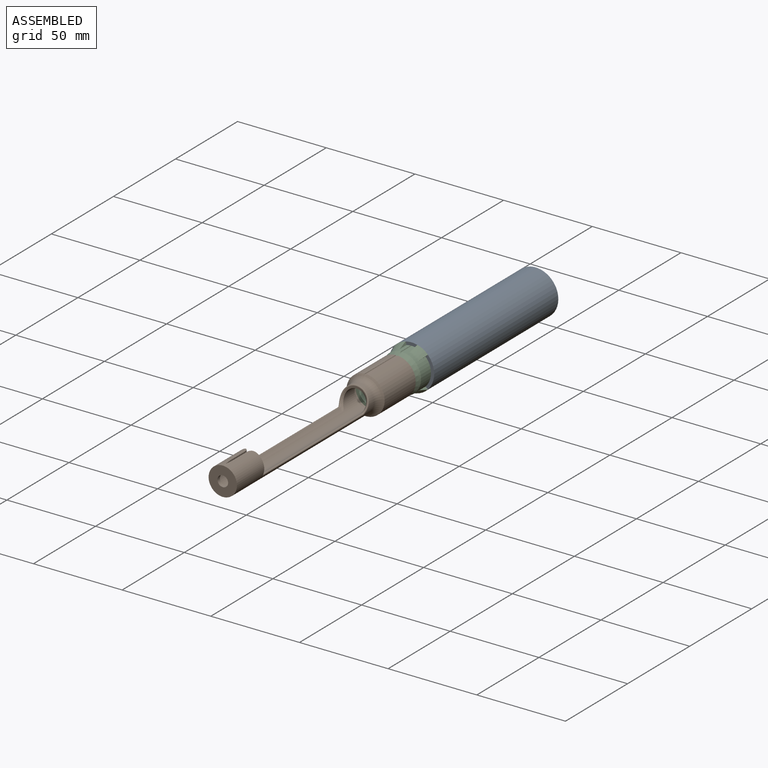
[diagram: assembled view]
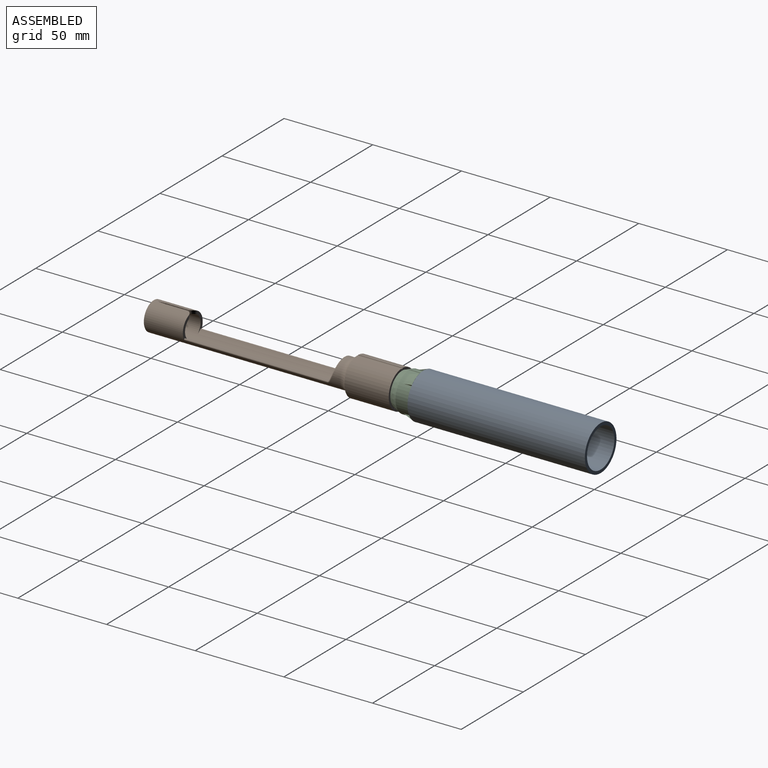
[diagram: assembled view, second angle]
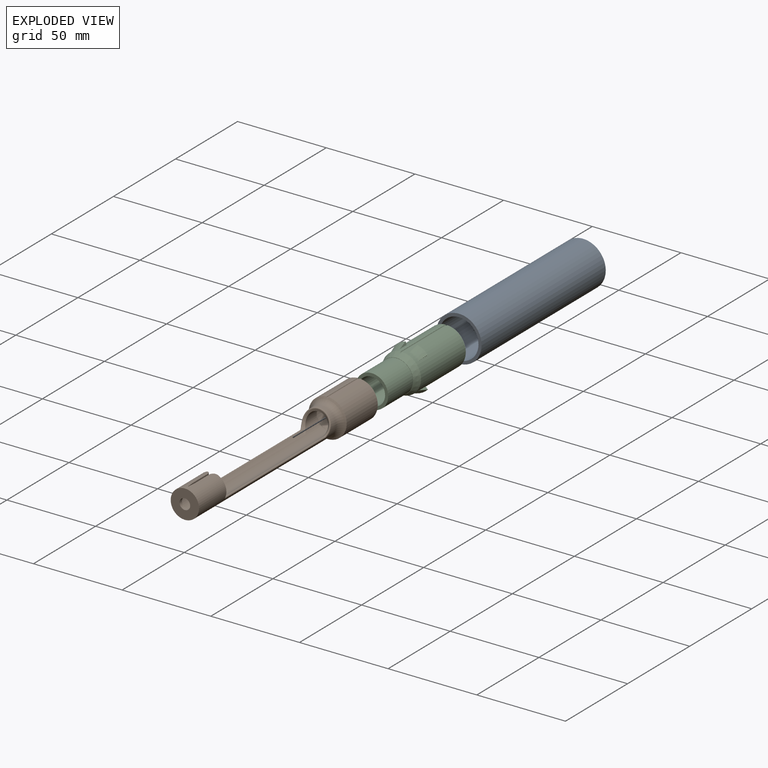
[diagram: exploded view]
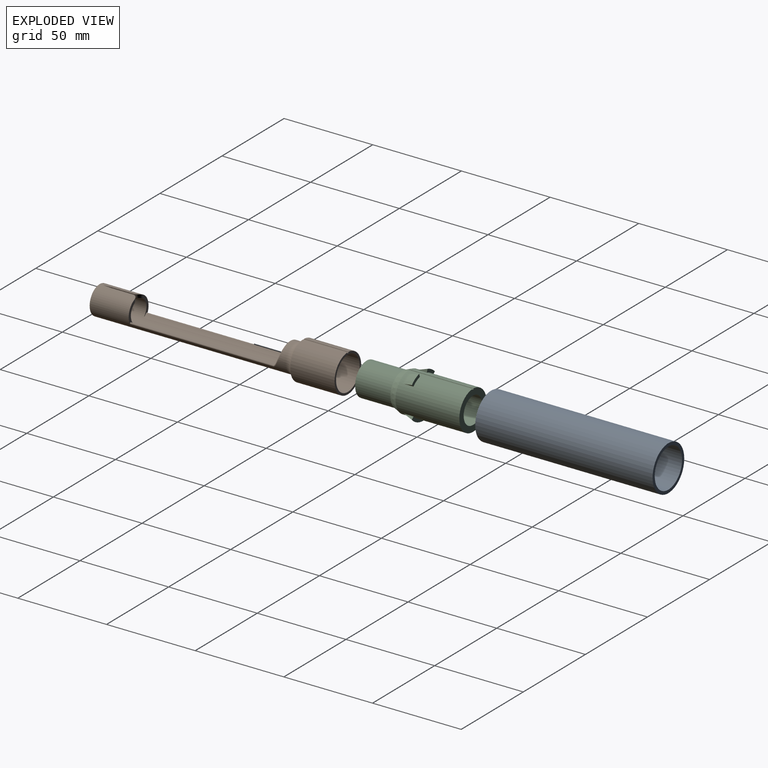
[diagram: exploded view, second angle]
ASSEMBLY  parts=3 mates=2
PART A: 4 faces, bbox 25.5x100x25.5 mm
  f0: cylinder r=11mm len=100mm, axis (0,1,0), area 6911.5mm2, adj f2,f3
  f1: cylinder r=12.75mm len=100mm, axis (0,1,0), area 8011.1mm2, adj f2,f3
  f2: plane 25.5x25.5mm, normal (0,-1,0), area 130.6mm2, adj f0,f1
  f3: plane 25.5x25.5mm, normal (0,1,0), area 130.6mm2, adj f0,f1
PART B: 25 faces, bbox 28.1x140x28.1 mm
  f0: plane 11.99x4.5mm, normal (0,1,0), area 19.8mm2, adj f1,f2,f13,f18,f22
  f1: cylinder r=8mm len=110.54mm, axis (0,1,0), area 2700.2mm2, adj f0,f3,f9,f14,f16,f17,f18,f19
  f2: cylinder r=6.25mm len=113mm, axis (0,1,0), area 1836.8mm2, adj f0,f4,f11,f12,f13,f14,f15,f16
  f3: plane 16x16mm, normal (0,-1,0), area 172.8mm2, adj f1,f5
  f4: plane 12.5x12.5mm, normal (0,1,0), area 94.4mm2, adj f2,f5
  f5: cylinder r=3mm len=6mm, axis (0,-1,0), area 37.7mm2, adj f3,f4
  f6: plane 21.5x21.49mm, normal (0,1,0), area 79.1mm2, adj f7,f8,f10
  f7: cylinder r=10.75mm len=25mm, axis (0,-1,0), area 1663.6mm2, adj f6,f8,f9
  f8: cylinder r=0.5mm len=25.29mm, axis (0,-1,0), area 38.9mm2, adj f6,f7,f9
  f9: torus R=13mm, axis (0,1,0), area 310.2mm2, adj f1,f7,f8
  f10: cylinder r=9.5mm len=20.32mm, axis (0,1,0), area 1212.7mm2, adj f6,f11
  f11: torus R=4.5mm, axis (0,-1,0), area 318.7mm2, adj f2,f10
  f12: cylinder r=8.5mm len=80.5mm, axis (0,-1,0), area 204mm2, adj f2,f14,f15,f24
  f13: cylinder r=8.5mm len=80.5mm, axis (0,-1,0), area 204mm2, adj f0,f2,f15,f22
  f14: plane 11.99x4.5mm, normal (0,1,0), area 19.8mm2, adj f1,f2,f12,f19,f24
  f15: torus R=3.5mm, axis (0,-1,0), area 38.8mm2, adj f2,f12,f13,f23
  f16: plane 12x1.75mm, normal (1,0,0), area 21.1mm2, adj f1,f2,f18,f21
  f17: plane 12x1.75mm, normal (-1,0,0), area 21.1mm2, adj f1,f2,f19,f20
  f18: cylinder r=3mm len=3mm, axis (0,0,1), area 8.6mm2, adj f0,f1,f2,f16
  f19: cylinder r=3mm len=3mm, axis (0,0,-1), area 8.6mm2, adj f1,f2,f14,f17
  f20: plane 5x1.77mm, normal (-1,0.1,0), area 8.8mm2, adj f1,f2,f17,f21
  f21: plane 5x1.77mm, normal (1,0.1,0), area 8.8mm2, adj f1,f2,f16,f20
  f22: cylinder r=0.58mm len=80.5mm, axis (0,-1,0), area 133.4mm2, adj f0,f1,f13,f23
  f23: bspline ~18.24x11.99mm, area 43.4mm2, adj f1,f15,f22,f24
  f24: cylinder r=0.58mm len=80.5mm, axis (0,1,0), area 133.4mm2, adj f1,f12,f14,f23
PART C: 23 faces, bbox 22x60x26.5 mm
  f0: cone r=12.8mm half-angle=18.8deg, axis (0,1,0), area 31.2mm2, adj f10,f12,f14,f20
  f1: plane 6.38x4.74mm, normal (0,1,0), area 11.6mm2, adj f2,f9,f11,f13
  f2: cylinder r=11mm len=36mm, axis (0,-1,0), area 2270.3mm2, adj f1,f6,f8,f10,f11,f12,f13,f14
  f3: cylinder r=7.5mm len=60mm, axis (0,1,0), area 2827.4mm2, adj f5,f6
  f4: cylinder r=9.25mm len=20mm, axis (0,1,0), area 1162.4mm2, adj f5,f7
  f5: plane 18.5x18.5mm, normal (0,-1,0), area 92.1mm2, adj f3,f4
  f6: plane 22x21.99mm, normal (0,1,0), area 203mm2, adj f2,f3,f8
  f7: plane 18.77x18.77mm, normal (0,-1,0), area 7.8mm2, adj f4,f22
  f8: cylinder r=0.5mm len=37.24mm, axis (0,1,0), area 57mm2, adj f2,f6,f22
  f9: cone r=12.8mm half-angle=18.8deg, axis (0,1,0), area 31.2mm2, adj f1,f11,f13,f21
  f10: plane 6.38x4.74mm, normal (0,1,0), area 11.6mm2, adj f0,f2,f12,f14
  f11: plane 6.13x1.3mm, normal (0.69,0,-0.72), area 4.8mm2, adj f1,f2,f9,f21
  f12: plane 6.13x1.3mm, normal (-0.69,0,-0.72), area 4.8mm2, adj f0,f2,f10,f20
  f13: plane 6.13x1.74mm, normal (-0.97,0,0.26), area 4.8mm2, adj f1,f2,f9,f21
  f14: plane 6.13x1.74mm, normal (0.97,0,0.26), area 4.8mm2, adj f0,f2,f10,f20
  f15: cone r=12.8mm half-angle=18.8deg, axis (0,1,0), area 92.5mm2, adj f16,f17,f18,f19
  f16: plane 18.46x5.18mm, normal (0,1,0), area 34.5mm2, adj f2,f15,f17,f18
  f17: plane 6.13x1.3mm, normal (-0.69,0,0.72), area 4.8mm2, adj f2,f15,f16,f19
  f18: plane 6.13x1.3mm, normal (0.69,0,0.72), area 4.8mm2, adj f2,f15,f16,f19
  f19: torus R=16mm, axis (0,-1,0), area 29.2mm2, adj f2,f15,f17,f18
  f20: torus R=16mm, axis (0,-1,0), area 9.9mm2, adj f0,f2,f12,f14
  f21: torus R=16mm, axis (0,-1,0), area 9.9mm2, adj f2,f9,f11,f13
  f22: cone r=11mm half-angle=22deg, axis (0,1,0), area 275.2mm2, adj f2,f7,f8
PLACE A t=(-59.64,146.85,-27.93)mm
PLACE B t=(-59.64,109.85,-27.93)mm
PLACE C t=(-59.64,109.85,-27.93)mm
MATE fastened A.f0 <-> C.f0  axis (0,-1,0) through (-59.64,46.85,-27.93)mm
MATE fastened B.f7 <-> C.f0  axis (0,-1,0) through (-59.64,34.85,-27.93)mm
